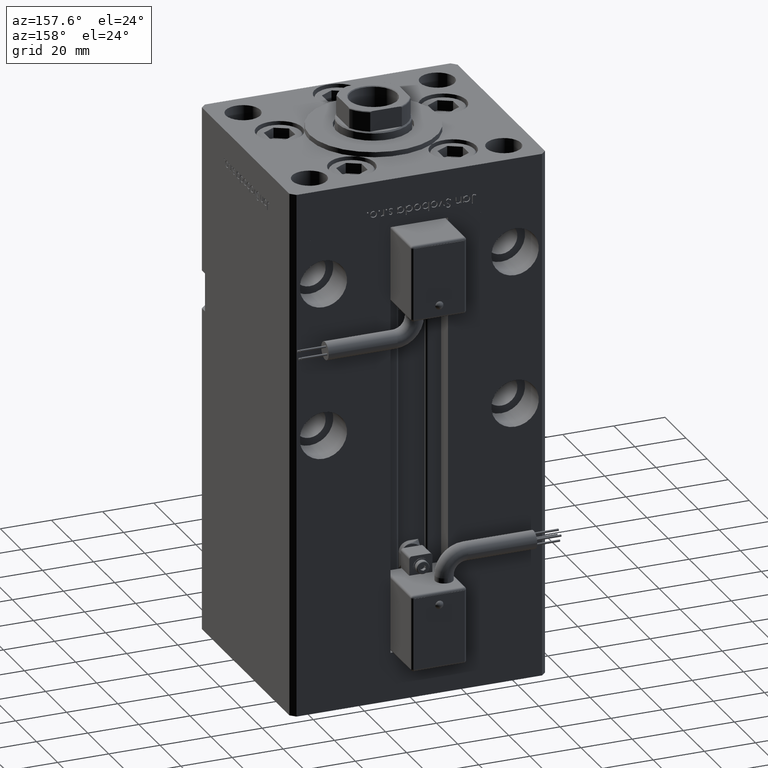
[diagram: clean part render]
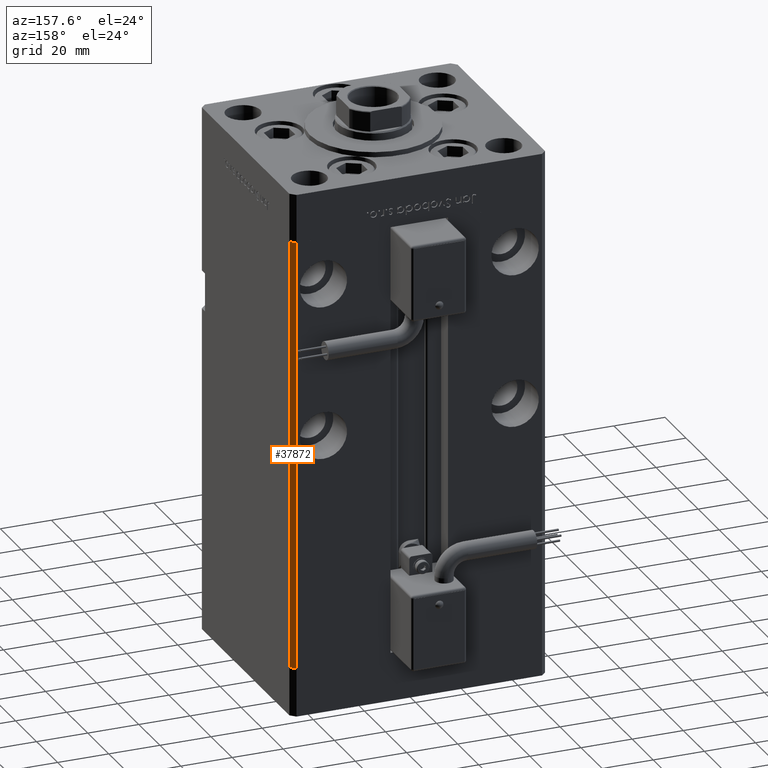
[diagram: same view with one face highlighted and labeled with its STEP entity id]
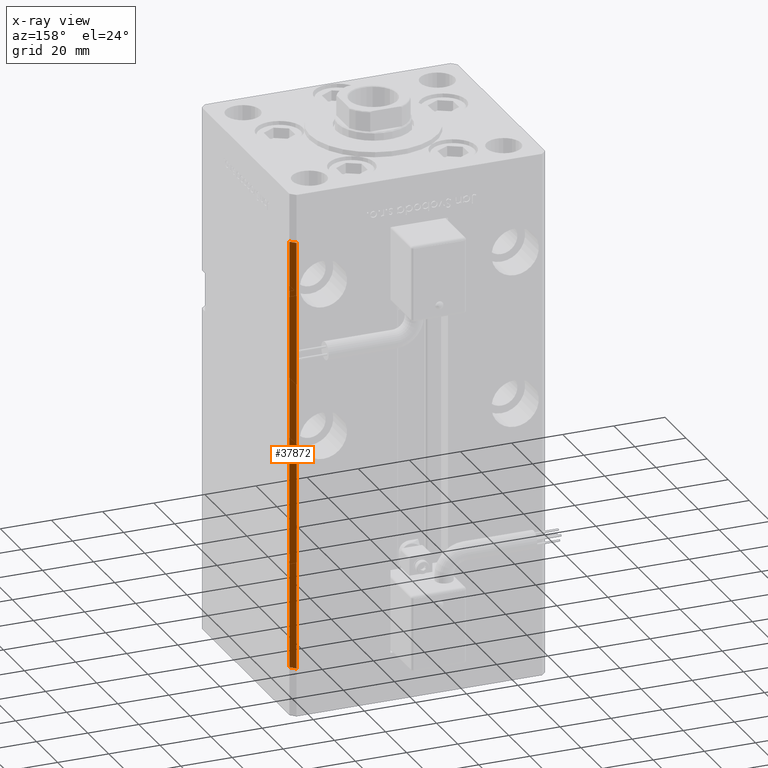
[diagram: x-ray of the same camera — body ghosted, the highlighted face saturated]
A machine part, auxiliary view. The second image highlights one B-rep face of the part: STEP entity #37872.
The next image is the same camera in x-ray: the body ghosted, the highlighted face saturated — about 0% of this face is hidden behind the body in this view.
In plain terms, the highlighted planar face has unit normal (0.7071, 0.7071, 0).
Its self-contained STEP definition (entity closure, byte-faithful):
#1321 = VERTEX_POINT ( 'NONE', #52003 ) ;
#2516 = VERTEX_POINT ( 'NONE', #6334 ) ;
#5057 = CARTESIAN_POINT ( 'NONE',  ( 48.00000000000000711, 43.50000000000000000, 0.000000000000000000 ) ) ;
#6334 = CARTESIAN_POINT ( 'NONE',  ( 50.00000000000001421, 41.49999999999999289, 0.000000000000000000 ) ) ;
#7876 = LINE ( 'NONE', #11865, #21835 ) ;
#9170 = VECTOR ( 'NONE', #17349, 1000.000000000000000 ) ;
#11019 = CARTESIAN_POINT ( 'NONE',  ( 48.00000000000000711, 43.50000000000000000, 168.5000000000000000 ) ) ;
#11865 = CARTESIAN_POINT ( 'NONE',  ( 48.00000000000000711, 43.50000000000000000, 168.5000000000000000 ) ) ;
#13858 = ORIENTED_EDGE ( 'NONE', *, *, #17821, .T. ) ;
#16971 = ORIENTED_EDGE ( 'NONE', *, *, #26685, .F. ) ;
#17349 = DIRECTION ( 'NONE',  ( -0.000000000000000000, -0.000000000000000000, -1.000000000000000000 ) ) ;
#17821 = EDGE_CURVE ( 'NONE', #52726, #2516, #50105, .T. ) ;
#19520 = PLANE ( 'NONE',  #29984 ) ;
#20682 = ORIENTED_EDGE ( 'NONE', *, *, #41500, .F. ) ;
#21835 = VECTOR ( 'NONE', #25248, 1000.000000000000000 ) ;
#24635 = FACE_OUTER_BOUND ( 'NONE', #46858, .T. ) ;
#25248 = DIRECTION ( 'NONE',  ( 0.7071067811865487940, -0.7071067811865463515, 0.000000000000000000 ) ) ;
#26685 = EDGE_CURVE ( 'NONE', #1321, #2516, #44115, .T. ) ;
#27021 = CARTESIAN_POINT ( 'NONE',  ( 48.00000000000000711, 43.50000000000000000, 168.5000000000000000 ) ) ;
#28079 = ORIENTED_EDGE ( 'NONE', *, *, #52907, .T. ) ;
#29984 = AXIS2_PLACEMENT_3D ( 'NONE', #36899, #41471, #32334 ) ;
#31540 = VECTOR ( 'NONE', #39831, 1000.000000000000000 ) ;
#31547 = VERTEX_POINT ( 'NONE', #11019 ) ;
#32334 = DIRECTION ( 'NONE',  ( -0.7071067811865487940, 0.7071067811865463515, 0.000000000000000000 ) ) ;
#36899 = CARTESIAN_POINT ( 'NONE',  ( 48.00000000000000711, 43.50000000000000000, 168.5000000000000000 ) ) ;
#36950 = CARTESIAN_POINT ( 'NONE',  ( 50.00000000000001421, 41.49999999999999289, 168.5000000000000000 ) ) ;
#37811 = DIRECTION ( 'NONE',  ( -0.000000000000000000, -0.000000000000000000, -1.000000000000000000 ) ) ;
#37872 = ADVANCED_FACE ( 'NONE', ( #24635 ), #19520, .T. ) ;
#39831 = DIRECTION ( 'NONE',  ( 0.7071067811865487940, -0.7071067811865463515, 0.000000000000000000 ) ) ;
#40307 = VECTOR ( 'NONE', #37811, 1000.000000000000000 ) ;
#41471 = DIRECTION ( 'NONE',  ( 0.7071067811865463515, 0.7071067811865487940, -0.000000000000000000 ) ) ;
#41500 = EDGE_CURVE ( 'NONE', #31547, #1321, #52984, .T. ) ;
#41548 = CARTESIAN_POINT ( 'NONE',  ( 50.00000000000001421, 41.49999999999999289, 168.5000000000000000 ) ) ;
#44115 = LINE ( 'NONE', #5057, #31540 ) ;
#46858 = EDGE_LOOP ( 'NONE', ( #16971, #20682, #28079, #13858 ) ) ;
#50105 = LINE ( 'NONE', #41548, #40307 ) ;
#52003 = CARTESIAN_POINT ( 'NONE',  ( 48.00000000000000711, 43.50000000000000000, 0.000000000000000000 ) ) ;
#52726 = VERTEX_POINT ( 'NONE', #36950 ) ;
#52907 = EDGE_CURVE ( 'NONE', #31547, #52726, #7876, .T. ) ;
#52984 = LINE ( 'NONE', #27021, #9170 ) ;